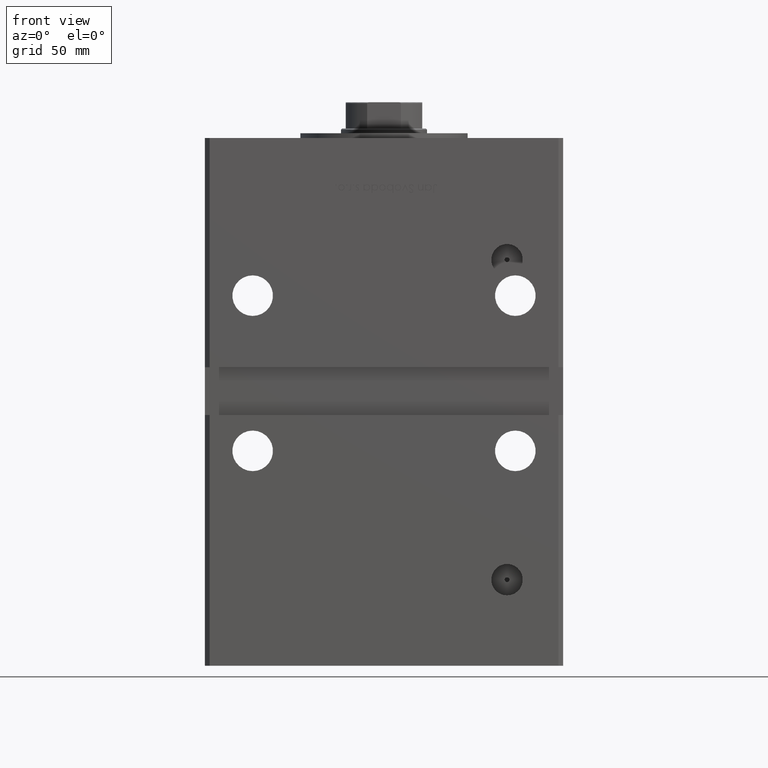
[diagram: clean part render]
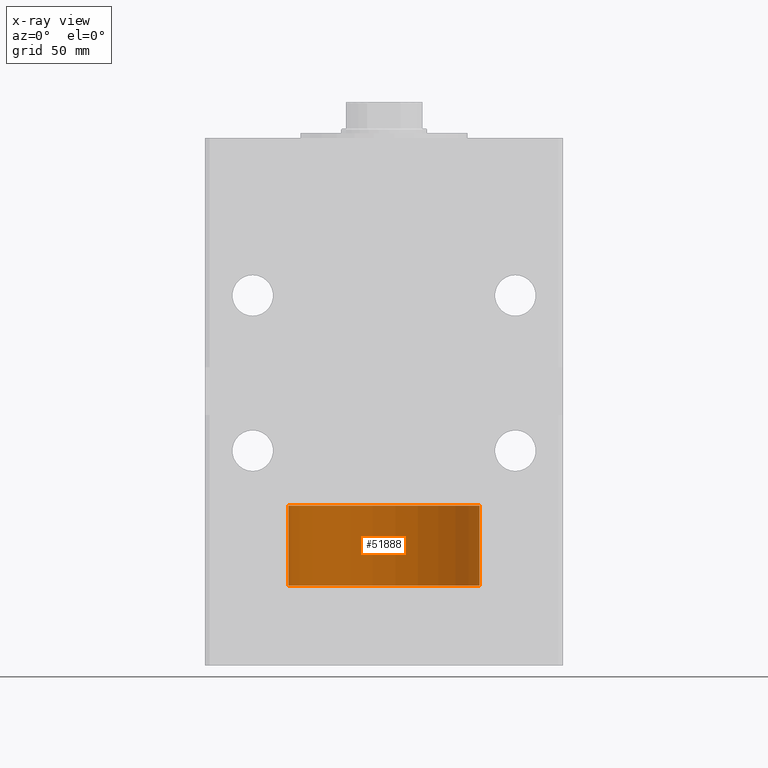
[diagram: x-ray — body ghosted, one internal face saturated and labeled with its STEP entity id]
A machine part, front view, then the same camera in x-ray: the body is ghosted and one INTERNAL B-rep face — a face not visible from any outside direction — is saturated and labeled: STEP entity #51888.
In plain terms, the highlighted cylindrical surface (partial cylindrical patch) has radius 40 mm, axis along (-0, -0, -1).
Its self-contained STEP definition (entity closure, byte-faithful):
#698 = AXIS2_PLACEMENT_3D ( 'NONE', #32949, #9079, #755 ) ;
#755 = DIRECTION ( 'NONE',  ( 1.000000000000000000, 0.000000000000000000, 0.000000000000000000 ) ) ;
#1637 = DIRECTION ( 'NONE',  ( -1.000000000000000000, 0.000000000000000000, 0.000000000000000000 ) ) ;
#2421 = CIRCLE ( 'NONE', #698, 40.00000000000000000 ) ;
#2984 = EDGE_LOOP ( 'NONE', ( #21224, #43607, #45831, #16198 ) ) ;
#7041 = CARTESIAN_POINT ( 'NONE',  ( 40.00000000000000000, 4.898587196589413026E-15, 33.50000000000000000 ) ) ;
#7365 = DIRECTION ( 'NONE',  ( 1.000000000000000000, 0.000000000000000000, 0.000000000000000000 ) ) ;
#7636 = CARTESIAN_POINT ( 'NONE',  ( 0.000000000000000000, 0.000000000000000000, 33.50000000000000000 ) ) ;
#9079 = DIRECTION ( 'NONE',  ( 0.000000000000000000, 0.000000000000000000, 1.000000000000000000 ) ) ;
#10523 = CARTESIAN_POINT ( 'NONE',  ( -40.00000000000000000, 0.000000000000000000, 0.000000000000000000 ) ) ;
#11248 = AXIS2_PLACEMENT_3D ( 'NONE', #38370, #47487, #1637 ) ;
#12302 = VECTOR ( 'NONE', #19053, 1000.000000000000000 ) ;
#14159 = CARTESIAN_POINT ( 'NONE',  ( -40.00000000000000000, 0.000000000000000000, 33.50000000000000000 ) ) ;
#16198 = ORIENTED_EDGE ( 'NONE', *, *, #41515, .F. ) ;
#17449 = EDGE_CURVE ( 'NONE', #36495, #38051, #33349, .T. ) ;
#17988 = LINE ( 'NONE', #23064, #12302 ) ;
#18502 = CARTESIAN_POINT ( 'NONE',  ( 40.00000000000000000, 4.898587196589413026E-15, 0.000000000000000000 ) ) ;
#18525 = FACE_OUTER_BOUND ( 'NONE', #2984, .T. ) ;
#18806 = AXIS2_PLACEMENT_3D ( 'NONE', #7636, #39807, #7365 ) ;
#19053 = DIRECTION ( 'NONE',  ( -0.000000000000000000, -0.000000000000000000, -1.000000000000000000 ) ) ;
#21224 = ORIENTED_EDGE ( 'NONE', *, *, #17449, .F. ) ;
#23064 = CARTESIAN_POINT ( 'NONE',  ( 40.00000000000000000, 4.898587196589413026E-15, 33.50000000000000000 ) ) ;
#25453 = VECTOR ( 'NONE', #35071, 1000.000000000000000 ) ;
#25774 = VERTEX_POINT ( 'NONE', #10523 ) ;
#32589 = VERTEX_POINT ( 'NONE', #18502 ) ;
#32949 = CARTESIAN_POINT ( 'NONE',  ( 0.000000000000000000, 0.000000000000000000, 0.000000000000000000 ) ) ;
#33349 = CIRCLE ( 'NONE', #18806, 40.00000000000000000 ) ;
#33535 = EDGE_CURVE ( 'NONE', #36495, #32589, #17988, .T. ) ;
#34885 = CYLINDRICAL_SURFACE ( 'NONE', #11248, 40.00000000000000000 ) ;
#35071 = DIRECTION ( 'NONE',  ( -0.000000000000000000, -0.000000000000000000, -1.000000000000000000 ) ) ;
#36495 = VERTEX_POINT ( 'NONE', #7041 ) ;
#38051 = VERTEX_POINT ( 'NONE', #42266 ) ;
#38370 = CARTESIAN_POINT ( 'NONE',  ( 0.000000000000000000, 0.000000000000000000, 33.50000000000000000 ) ) ;
#39807 = DIRECTION ( 'NONE',  ( 0.000000000000000000, 0.000000000000000000, 1.000000000000000000 ) ) ;
#40603 = EDGE_CURVE ( 'NONE', #32589, #25774, #2421, .T. ) ;
#41515 = EDGE_CURVE ( 'NONE', #38051, #25774, #42849, .T. ) ;
#42266 = CARTESIAN_POINT ( 'NONE',  ( -40.00000000000000000, 0.000000000000000000, 33.50000000000000000 ) ) ;
#42849 = LINE ( 'NONE', #14159, #25453 ) ;
#43607 = ORIENTED_EDGE ( 'NONE', *, *, #33535, .T. ) ;
#45831 = ORIENTED_EDGE ( 'NONE', *, *, #40603, .T. ) ;
#47487 = DIRECTION ( 'NONE',  ( -0.000000000000000000, -0.000000000000000000, -1.000000000000000000 ) ) ;
#51888 = ADVANCED_FACE ( 'NONE', ( #18525 ), #34885, .T. ) ;